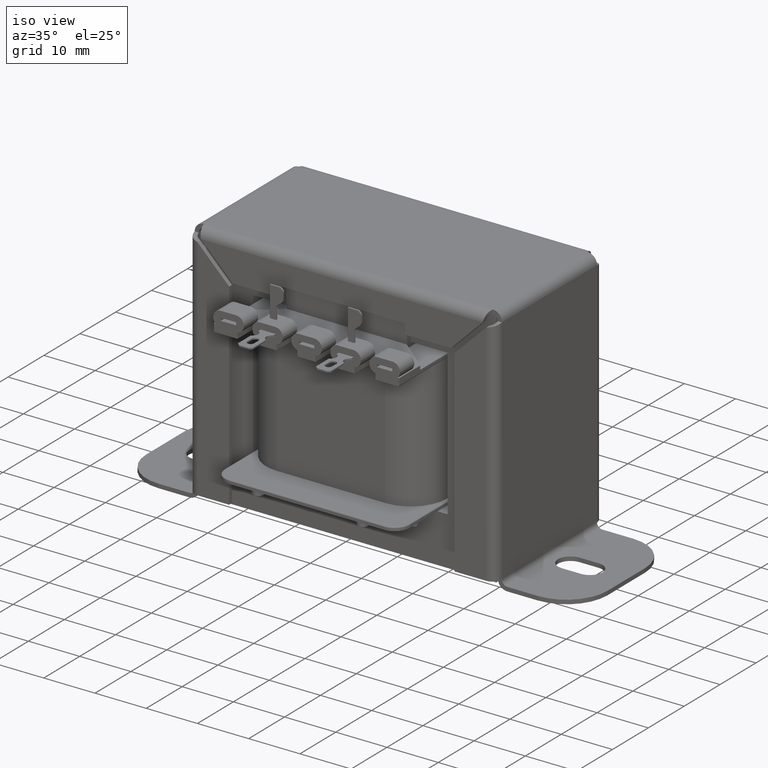
[diagram: clean part render]
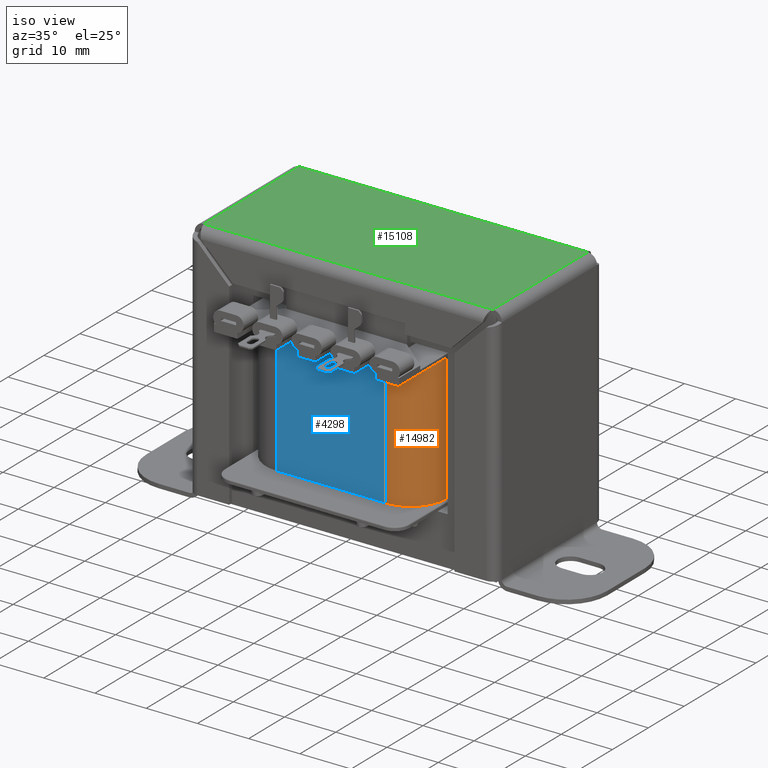
[diagram: same view with three faces highlighted in distinct colors, each labeled with its STEP entity id]
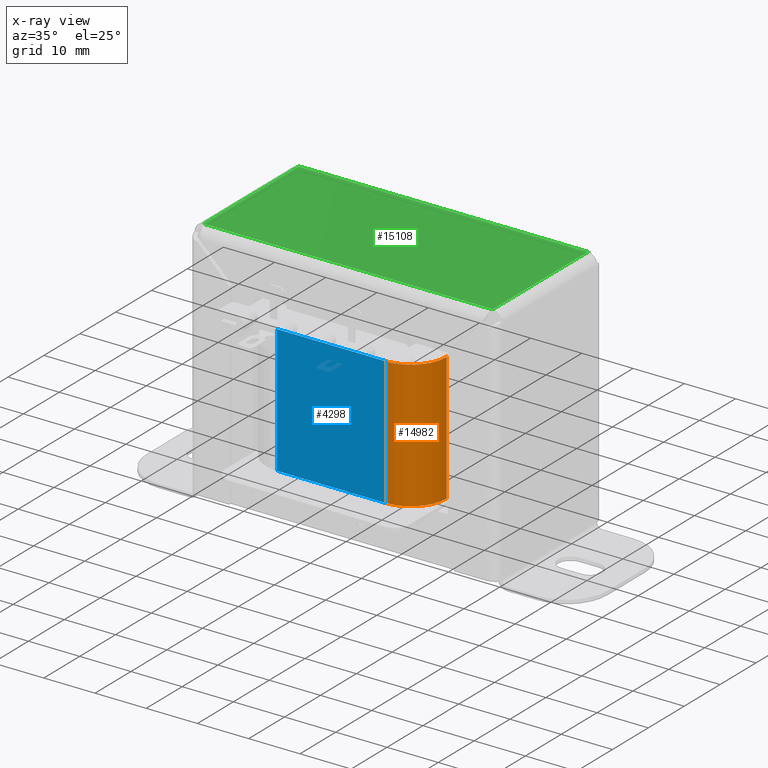
[diagram: x-ray of the same camera — body ghosted, the three highlighted faces saturated]
A machine part, iso view with three faces highlighted in distinct colors.
The next image is the same camera in x-ray (body ghosted, the three faces saturated) — at least one of them is partly hidden behind the body in this view.
Their STEP definitions:

[orange] entity #14982 — the highlighted cylindrical surface (partial cylindrical patch) has radius 7 mm, axis along (-0, 0, -1).
#673 = EDGE_CURVE ( 'NONE', #11880, #11168, #16419, .T. ) ;
#704 = ORIENTED_EDGE ( 'NONE', *, *, #8322, .F. ) ;
#756 = DIRECTION ( 'NONE',  ( 0.000000000000000000, -1.000000000000000000, 0.000000000000000000 ) ) ;
#1429 = FACE_OUTER_BOUND ( 'NONE', #6027, .T. ) ;
#2509 = AXIS2_PLACEMENT_3D ( 'NONE', #13972, #7029, #4177 ) ;
#2510 = CARTESIAN_POINT ( 'NONE',  ( -17.99999999999998934, 0.000000000000000000, 10.65000000000000036 ) ) ;
#2592 = VECTOR ( 'NONE', #756, 1000.000000000000000 ) ;
#2900 = CYLINDRICAL_SURFACE ( 'NONE', #5227, 7.000000000000000000 ) ;
#3164 = DIRECTION ( 'NONE',  ( 0.000000000000000000, -1.000000000000000000, 0.000000000000000000 ) ) ;
#3420 = EDGE_CURVE ( 'NONE', #6198, #11880, #9218, .T. ) ;
#3691 = DIRECTION ( 'NONE',  ( 0.000000000000000000, 0.000000000000000000, -1.000000000000000000 ) ) ;
#4177 = DIRECTION ( 'NONE',  ( 0.000000000000000000, 0.000000000000000000, -1.000000000000000000 ) ) ;
#5155 = DIRECTION ( 'NONE',  ( -0.000000000000000000, 1.000000000000000000, -0.000000000000000000 ) ) ;
#5213 = CARTESIAN_POINT ( 'NONE',  ( -10.99999999999998934, 25.00000000000000000, 17.64999999999999503 ) ) ;
#5227 = AXIS2_PLACEMENT_3D ( 'NONE', #12679, #3164, #8745 ) ;
#5524 = AXIS2_PLACEMENT_3D ( 'NONE', #10663, #5155, #3691 ) ;
#6004 = VERTEX_POINT ( 'NONE', #5213 ) ;
#6027 = EDGE_LOOP ( 'NONE', ( #9785, #13542, #13099, #704 ) ) ;
#6198 = VERTEX_POINT ( 'NONE', #12900 ) ;
#6975 = CIRCLE ( 'NONE', #5524, 7.000000000000000000 ) ;
#7029 = DIRECTION ( 'NONE',  ( 0.000000000000000000, -1.000000000000000000, 0.000000000000000000 ) ) ;
#7820 = CARTESIAN_POINT ( 'NONE',  ( -17.99999999999998934, 25.00000000000000000, 10.65000000000000036 ) ) ;
#8322 = EDGE_CURVE ( 'NONE', #6004, #6198, #16210, .T. ) ;
#8745 = DIRECTION ( 'NONE',  ( 0.000000000000000000, 0.000000000000000000, -1.000000000000000000 ) ) ;
#9089 = CARTESIAN_POINT ( 'NONE',  ( -10.99999999999998934, 25.00000000000000000, 17.64999999999999503 ) ) ;
#9218 = CIRCLE ( 'NONE', #2509, 7.000000000000000000 ) ;
#9785 = ORIENTED_EDGE ( 'NONE', *, *, #12825, .F. ) ;
#10663 = CARTESIAN_POINT ( 'NONE',  ( -10.99999999999998934, 25.00000000000000000, 10.64999999999999680 ) ) ;
#11168 = VERTEX_POINT ( 'NONE', #11348 ) ;
#11348 = CARTESIAN_POINT ( 'NONE',  ( -17.99999999999998934, 25.00000000000000000, 10.65000000000000036 ) ) ;
#11880 = VERTEX_POINT ( 'NONE', #2510 ) ;
#12679 = CARTESIAN_POINT ( 'NONE',  ( -10.99999999999998934, 25.00000000000000000, 10.64999999999999680 ) ) ;
#12825 = EDGE_CURVE ( 'NONE', #11168, #6004, #6975, .T. ) ;
#12900 = CARTESIAN_POINT ( 'NONE',  ( -10.99999999999998934, 0.000000000000000000, 17.64999999999999503 ) ) ;
#13099 = ORIENTED_EDGE ( 'NONE', *, *, #3420, .F. ) ;
#13305 = DIRECTION ( 'NONE',  ( -0.000000000000000000, 1.000000000000000000, -0.000000000000000000 ) ) ;
#13542 = ORIENTED_EDGE ( 'NONE', *, *, #673, .F. ) ;
#13972 = CARTESIAN_POINT ( 'NONE',  ( -10.99999999999998934, 0.000000000000000000, 10.64999999999999680 ) ) ;
#14982 = ADVANCED_FACE ( 'NONE', ( #1429 ), #2900, .T. ) ;
#16210 = LINE ( 'NONE', #9089, #2592 ) ;
#16419 = LINE ( 'NONE', #7820, #17426 ) ;
#17426 = VECTOR ( 'NONE', #13305, 1000.000000000000000 ) ;

[blue] entity #4298 — the highlighted planar face has unit normal (-0, 1, 0).
#673 = EDGE_CURVE ( 'NONE', #11880, #11168, #16419, .T. ) ;
#1867 = ORIENTED_EDGE ( 'NONE', *, *, #7237, .F. ) ;
#2510 = CARTESIAN_POINT ( 'NONE',  ( -17.99999999999998934, 0.000000000000000000, 10.65000000000000036 ) ) ;
#3074 = CARTESIAN_POINT ( 'NONE',  ( -17.99999999999999289, 0.000000000000000000, -10.64999999999999858 ) ) ;
#3083 = EDGE_CURVE ( 'NONE', #15001, #11880, #6851, .T. ) ;
#3119 = LINE ( 'NONE', #9898, #4007 ) ;
#4007 = VECTOR ( 'NONE', #4402, 1000.000000000000000 ) ;
#4203 = FACE_OUTER_BOUND ( 'NONE', #16243, .T. ) ;
#4290 = DIRECTION ( 'NONE',  ( -2.948538486079558773E-16, 0.000000000000000000, -1.000000000000000000 ) ) ;
#4298 = ADVANCED_FACE ( 'NONE', ( #4203 ), #5668, .F. ) ;
#4402 = DIRECTION ( 'NONE',  ( 2.948538486079558773E-16, 0.000000000000000000, 1.000000000000000000 ) ) ;
#5477 = DIRECTION ( 'NONE',  ( 2.948538486079558773E-16, 0.000000000000000000, 1.000000000000000000 ) ) ;
#5668 = PLANE ( 'NONE',  #6741 ) ;
#5756 = VERTEX_POINT ( 'NONE', #12034 ) ;
#6288 = VECTOR ( 'NONE', #5477, 1000.000000000000000 ) ;
#6741 = AXIS2_PLACEMENT_3D ( 'NONE', #14269, #14003, #4290 ) ;
#6843 = ORIENTED_EDGE ( 'NONE', *, *, #15395, .T. ) ;
#6851 = LINE ( 'NONE', #12439, #6288 ) ;
#7237 = EDGE_CURVE ( 'NONE', #5756, #11168, #3119, .T. ) ;
#7820 = CARTESIAN_POINT ( 'NONE',  ( -17.99999999999998934, 25.00000000000000000, 10.65000000000000036 ) ) ;
#8084 = ORIENTED_EDGE ( 'NONE', *, *, #673, .T. ) ;
#8167 = DIRECTION ( 'NONE',  ( 0.000000000000000000, -1.000000000000000000, 0.000000000000000000 ) ) ;
#9898 = CARTESIAN_POINT ( 'NONE',  ( -17.99999999999999645, 25.00000000000000000, -17.64999999999999858 ) ) ;
#11168 = VERTEX_POINT ( 'NONE', #11348 ) ;
#11348 = CARTESIAN_POINT ( 'NONE',  ( -17.99999999999998934, 25.00000000000000000, 10.65000000000000036 ) ) ;
#11880 = VERTEX_POINT ( 'NONE', #2510 ) ;
#12034 = CARTESIAN_POINT ( 'NONE',  ( -17.99999999999999289, 25.00000000000000000, -10.64999999999999858 ) ) ;
#12374 = CARTESIAN_POINT ( 'NONE',  ( -17.99999999999999289, 25.00000000000000000, -10.64999999999999858 ) ) ;
#12439 = CARTESIAN_POINT ( 'NONE',  ( -17.99999999999999645, 0.000000000000000000, -17.64999999999999858 ) ) ;
#12483 = ORIENTED_EDGE ( 'NONE', *, *, #3083, .T. ) ;
#13305 = DIRECTION ( 'NONE',  ( -0.000000000000000000, 1.000000000000000000, -0.000000000000000000 ) ) ;
#14003 = DIRECTION ( 'NONE',  ( 1.000000000000000000, 0.000000000000000000, -2.948538486079558773E-16 ) ) ;
#14269 = CARTESIAN_POINT ( 'NONE',  ( -17.99999999999999645, 25.00000000000000000, -17.64999999999999858 ) ) ;
#15001 = VERTEX_POINT ( 'NONE', #3074 ) ;
#15395 = EDGE_CURVE ( 'NONE', #5756, #15001, #17768, .T. ) ;
#15776 = VECTOR ( 'NONE', #8167, 1000.000000000000000 ) ;
#16243 = EDGE_LOOP ( 'NONE', ( #1867, #6843, #12483, #8084 ) ) ;
#16419 = LINE ( 'NONE', #7820, #17426 ) ;
#17426 = VECTOR ( 'NONE', #13305, 1000.000000000000000 ) ;
#17768 = LINE ( 'NONE', #12374, #15776 ) ;

[green] entity #15108 — the highlighted planar face has unit normal (-0, 0, -1).
#19 = CARTESIAN_POINT ( 'NONE',  ( -28.20000000000000995, 0.9999999999999986677, -13.24999999999999822 ) ) ;
#509 = VECTOR ( 'NONE', #17009, 1000.000000000000000 ) ;
#631 = CARTESIAN_POINT ( 'NONE',  ( 28.19999999999999574, 0.9999999999999986677, 13.24999999999999822 ) ) ;
#669 = CARTESIAN_POINT ( 'NONE',  ( 0.000000000000000000, 1.000000000000000000, 0.000000000000000000 ) ) ;
#792 = ORIENTED_EDGE ( 'NONE', *, *, #6262, .T. ) ;
#1410 = EDGE_CURVE ( 'NONE', #17895, #12069, #12546, .T. ) ;
#1530 = CARTESIAN_POINT ( 'NONE',  ( 28.19999999999999574, 0.9999999999999986677, 13.24999999999999822 ) ) ;
#2618 = LINE ( 'NONE', #16702, #9551 ) ;
#3343 = CARTESIAN_POINT ( 'NONE',  ( 29.99999999999999645, 1.000000000000000000, 13.24999999999999822 ) ) ;
#5436 = CARTESIAN_POINT ( 'NONE',  ( -28.20000000000000284, 1.000000000000003109, 13.25000000000001243 ) ) ;
#5629 = VERTEX_POINT ( 'NONE', #13046 ) ;
#6262 = EDGE_CURVE ( 'NONE', #5629, #17895, #2618, .T. ) ;
#6737 = DIRECTION ( 'NONE',  ( -1.000000000000000000, 0.000000000000000000, 8.673617379884035472E-17 ) ) ;
#6756 = ORIENTED_EDGE ( 'NONE', *, *, #1410, .T. ) ;
#7354 = DIRECTION ( 'NONE',  ( 0.000000000000000000, -1.000000000000000000, 0.000000000000000000 ) ) ;
#7913 = LINE ( 'NONE', #3343, #9178 ) ;
#8898 = CARTESIAN_POINT ( 'NONE',  ( -28.20000000000000995, 0.9999999999999986677, -13.24999999999999467 ) ) ;
#9178 = VECTOR ( 'NONE', #16133, 1000.000000000000000 ) ;
#9551 = VECTOR ( 'NONE', #6737, 1000.000000000000000 ) ;
#11299 = VERTEX_POINT ( 'NONE', #631 ) ;
#11599 = EDGE_CURVE ( 'NONE', #11299, #5629, #15340, .T. ) ;
#12069 = VERTEX_POINT ( 'NONE', #5436 ) ;
#12546 = LINE ( 'NONE', #19, #509 ) ;
#12849 = DIRECTION ( 'NONE',  ( 0.000000000000000000, -0.000000000000000000, -1.000000000000000000 ) ) ;
#13046 = CARTESIAN_POINT ( 'NONE',  ( 28.19999999999998863, 0.9999999999999950040, -13.25000000000000178 ) ) ;
#13717 = VECTOR ( 'NONE', #13884, 1000.000000000000000 ) ;
#13884 = DIRECTION ( 'NONE',  ( -0.000000000000000000, -0.000000000000000000, -1.000000000000000000 ) ) ;
#14136 = EDGE_LOOP ( 'NONE', ( #6756, #17680, #16536, #792 ) ) ;
#14318 = PLANE ( 'NONE',  #15169 ) ;
#15108 = ADVANCED_FACE ( 'NONE', ( #15676 ), #14318, .F. ) ;
#15169 = AXIS2_PLACEMENT_3D ( 'NONE', #669, #7354, #12849 ) ;
#15340 = LINE ( 'NONE', #1530, #13717 ) ;
#15676 = FACE_OUTER_BOUND ( 'NONE', #14136, .T. ) ;
#16133 = DIRECTION ( 'NONE',  ( 1.000000000000000000, -0.000000000000000000, -1.156482317317871478E-16 ) ) ;
#16536 = ORIENTED_EDGE ( 'NONE', *, *, #11599, .T. ) ;
#16702 = CARTESIAN_POINT ( 'NONE',  ( 29.99999999999999289, 1.000000000000000000, -13.25000000000000178 ) ) ;
#17009 = DIRECTION ( 'NONE',  ( -0.000000000000000000, -0.000000000000000000, 1.000000000000000000 ) ) ;
#17398 = EDGE_CURVE ( 'NONE', #12069, #11299, #7913, .T. ) ;
#17680 = ORIENTED_EDGE ( 'NONE', *, *, #17398, .T. ) ;
#17895 = VERTEX_POINT ( 'NONE', #8898 ) ;